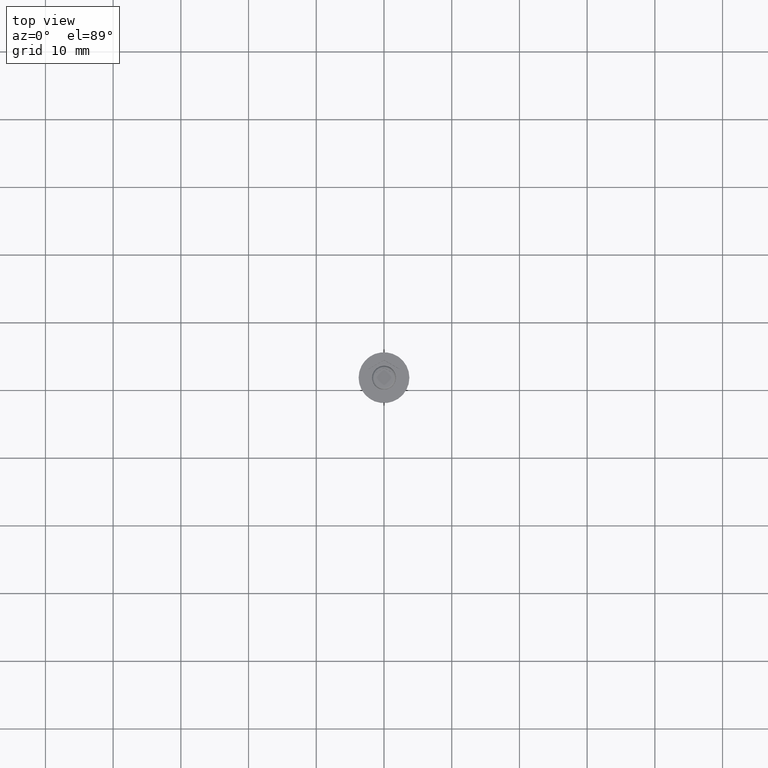
[diagram: clean part render]
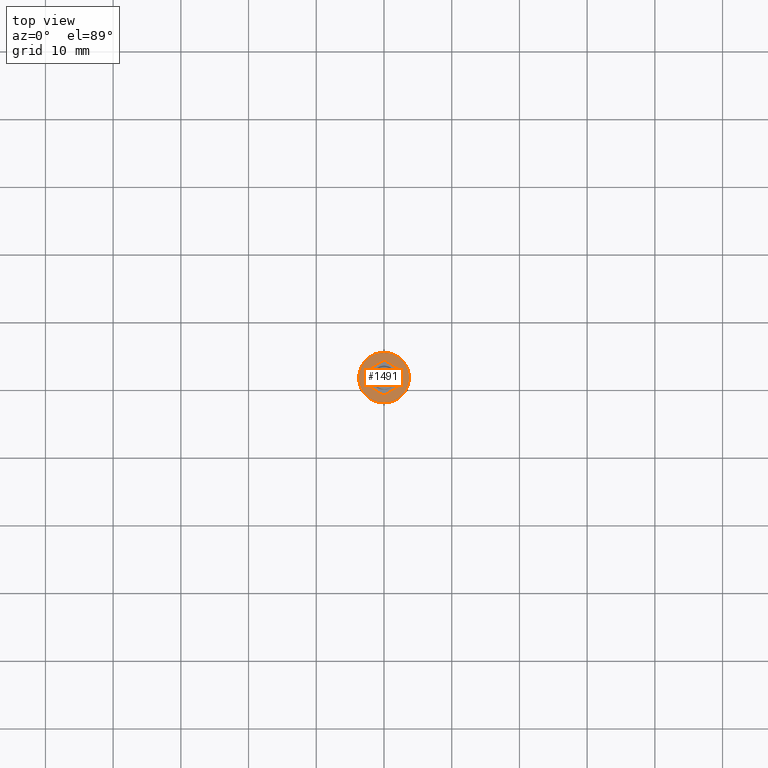
[diagram: same view with one face highlighted and labeled with its STEP entity id]
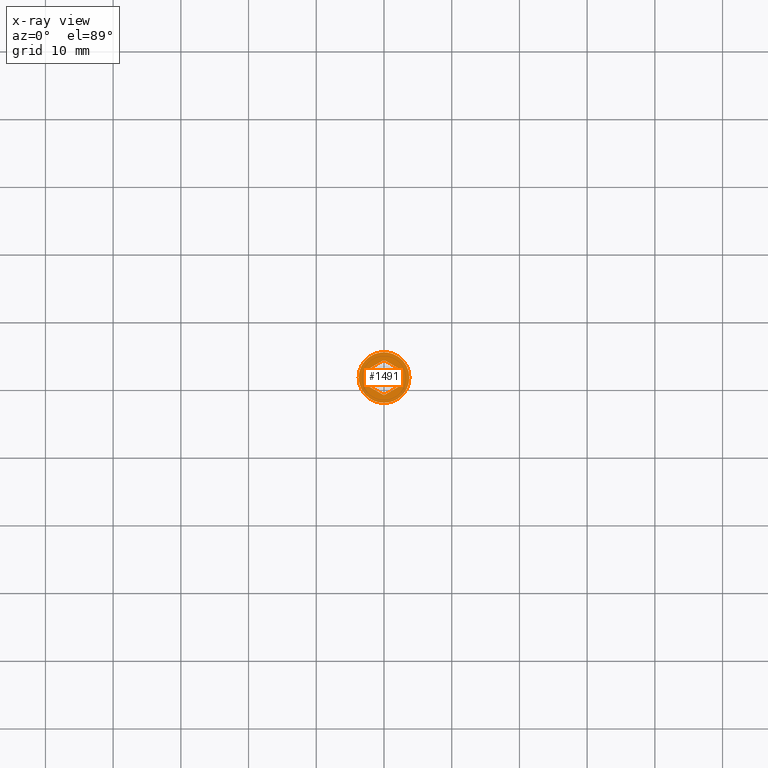
[diagram: x-ray of the same camera — body ghosted, the highlighted face saturated]
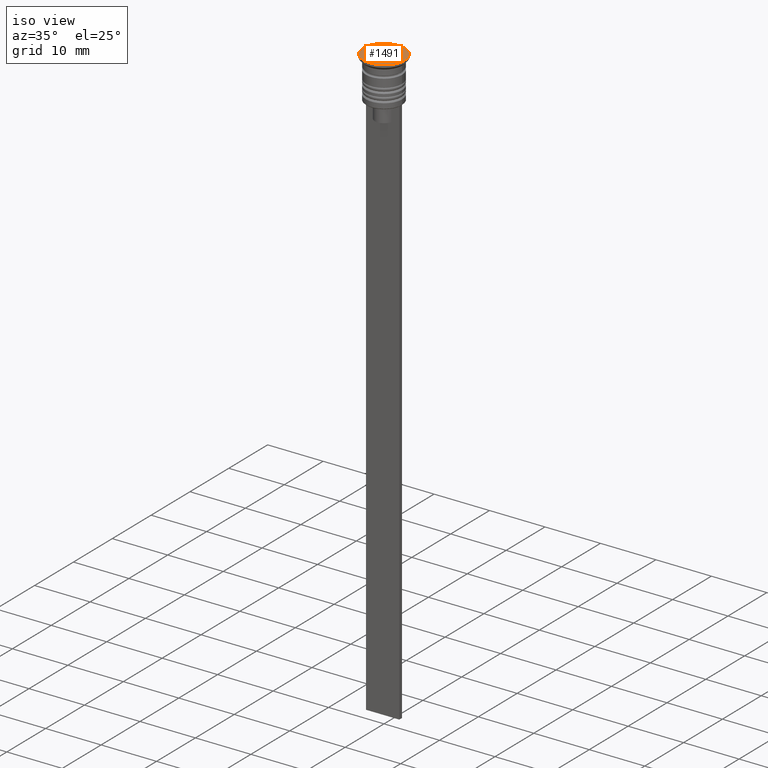
[diagram: same view with one face highlighted and labeled with its STEP entity id]
A machine part, top view. The second image highlights one B-rep face of the part: STEP entity #1491.
The next image is the same camera in x-ray: the body ghosted, the highlighted face saturated — about 0% of this face is hidden behind the body in this view.
A second angle (iso view) of the same face is appended — the face is thin or edge-on in the first view.
In plain terms, the highlighted planar face has unit normal (0, -0, 1).
Its self-contained STEP definition (entity closure, byte-faithful):
#54 = DIRECTION ( 'NONE',  ( 1.000000000000000000, 0.000000000000000000, 0.000000000000000000 ) ) ;
#68 = ORIENTED_EDGE ( 'NONE', *, *, #1567, .F. ) ;
#73 = VECTOR ( 'NONE', #501, 1000.000000000000000 ) ;
#74 = AXIS2_PLACEMENT_3D ( 'NONE', #668, #472, #309 ) ;
#233 = CARTESIAN_POINT ( 'NONE',  ( 2.224527942369933556E-16, -2.598076211353316456, 0.000000000000000000 ) ) ;
#253 = EDGE_LOOP ( 'NONE', ( #1910, #1860, #68, #394, #1458, #1301 ) ) ;
#298 = CARTESIAN_POINT ( 'NONE',  ( -2.250000000000000888, -1.299038105676658228, 0.000000000000000000 ) ) ;
#309 = DIRECTION ( 'NONE',  ( 1.000000000000000000, 0.000000000000000000, 0.000000000000000000 ) ) ;
#310 = ORIENTED_EDGE ( 'NONE', *, *, #1800, .T. ) ;
#385 = AXIS2_PLACEMENT_3D ( 'NONE', #1837, #500, #1670 ) ;
#394 = ORIENTED_EDGE ( 'NONE', *, *, #1081, .F. ) ;
#396 = CARTESIAN_POINT ( 'NONE',  ( 0.000000000000000000, 0.000000000000000000, 0.000000000000000000 ) ) ;
#456 = CIRCLE ( 'NONE', #74, 3.750000000000000000 ) ;
#472 = DIRECTION ( 'NONE',  ( -0.000000000000000000, -0.000000000000000000, 1.000000000000000000 ) ) ;
#500 = DIRECTION ( 'NONE',  ( 0.000000000000000000, -0.000000000000000000, 1.000000000000000000 ) ) ;
#501 = DIRECTION ( 'NONE',  ( -0.8660254037844387076, -0.4999999999999999445, 0.000000000000000000 ) ) ;
#514 = FACE_BOUND ( 'NONE', #253, .T. ) ;
#518 = VERTEX_POINT ( 'NONE', #740 ) ;
#590 = CARTESIAN_POINT ( 'NONE',  ( 2.250000000000000000, -1.299038105676658228, 0.000000000000000000 ) ) ;
#599 = CARTESIAN_POINT ( 'NONE',  ( 2.250000000000000444, 1.299038105676659116, 0.000000000000000000 ) ) ;
#651 = VERTEX_POINT ( 'NONE', #952 ) ;
#662 = VECTOR ( 'NONE', #1671, 1000.000000000000000 ) ;
#663 = LINE ( 'NONE', #2017, #73 ) ;
#668 = CARTESIAN_POINT ( 'NONE',  ( 0.000000000000000000, 0.000000000000000000, 0.000000000000000000 ) ) ;
#673 = EDGE_CURVE ( 'NONE', #2001, #1558, #1575, .T. ) ;
#700 = VERTEX_POINT ( 'NONE', #1707 ) ;
#740 = CARTESIAN_POINT ( 'NONE',  ( 0.000000000000000000, 2.598076211353316012, 0.000000000000000000 ) ) ;
#826 = PLANE ( 'NONE',  #385 ) ;
#846 = CARTESIAN_POINT ( 'NONE',  ( -2.250000000000000888, -1.299038105676658228, 0.000000000000000000 ) ) ;
#952 = CARTESIAN_POINT ( 'NONE',  ( 3.750000000000000000, 0.000000000000000000, 0.000000000000000000 ) ) ;
#995 = EDGE_CURVE ( 'NONE', #1746, #1267, #1649, .T. ) ;
#1003 = CIRCLE ( 'NONE', #1938, 3.750000000000000000 ) ;
#1081 = EDGE_CURVE ( 'NONE', #1558, #1495, #1449, .T. ) ;
#1104 = LINE ( 'NONE', #599, #1943 ) ;
#1144 = FACE_OUTER_BOUND ( 'NONE', #1423, .T. ) ;
#1148 = VECTOR ( 'NONE', #1532, 1000.000000000000000 ) ;
#1157 = CARTESIAN_POINT ( 'NONE',  ( 2.224527942369933556E-16, -2.598076211353316456, 0.000000000000000000 ) ) ;
#1245 = CARTESIAN_POINT ( 'NONE',  ( 2.250000000000000444, 1.299038105676659116, 0.000000000000000000 ) ) ;
#1248 = VECTOR ( 'NONE', #1564, 1000.000000000000000 ) ;
#1255 = EDGE_CURVE ( 'NONE', #518, #2001, #663, .T. ) ;
#1267 = VERTEX_POINT ( 'NONE', #1245 ) ;
#1278 = ORIENTED_EDGE ( 'NONE', *, *, #1503, .T. ) ;
#1301 = ORIENTED_EDGE ( 'NONE', *, *, #1255, .F. ) ;
#1360 = VECTOR ( 'NONE', #2163, 1000.000000000000000 ) ;
#1423 = EDGE_LOOP ( 'NONE', ( #310, #1278 ) ) ;
#1449 = LINE ( 'NONE', #298, #1360 ) ;
#1458 = ORIENTED_EDGE ( 'NONE', *, *, #673, .F. ) ;
#1491 = ADVANCED_FACE ( 'NONE', ( #514, #1144 ), #826, .T. ) ;
#1495 = VERTEX_POINT ( 'NONE', #1157 ) ;
#1503 = EDGE_CURVE ( 'NONE', #700, #651, #1003, .T. ) ;
#1532 = DIRECTION ( 'NONE',  ( 0.8660254037844385966, 0.5000000000000001110, 0.000000000000000000 ) ) ;
#1558 = VERTEX_POINT ( 'NONE', #846 ) ;
#1564 = DIRECTION ( 'NONE',  ( 0.000000000000000000, -1.000000000000000000, 0.000000000000000000 ) ) ;
#1567 = EDGE_CURVE ( 'NONE', #1495, #1746, #1706, .T. ) ;
#1575 = LINE ( 'NONE', #1716, #1248 ) ;
#1649 = LINE ( 'NONE', #2172, #662 ) ;
#1670 = DIRECTION ( 'NONE',  ( 1.000000000000000000, 0.000000000000000000, 0.000000000000000000 ) ) ;
#1671 = DIRECTION ( 'NONE',  ( 1.669238443041287429E-16, 1.000000000000000000, 0.000000000000000000 ) ) ;
#1706 = LINE ( 'NONE', #233, #1148 ) ;
#1707 = CARTESIAN_POINT ( 'NONE',  ( -3.750000000000000000, 4.592425496802573972E-16, 0.000000000000000000 ) ) ;
#1716 = CARTESIAN_POINT ( 'NONE',  ( -2.250000000000000888, 1.299038105676658228, 0.000000000000000000 ) ) ;
#1724 = CARTESIAN_POINT ( 'NONE',  ( -2.250000000000000888, 1.299038105676658228, 0.000000000000000000 ) ) ;
#1746 = VERTEX_POINT ( 'NONE', #590 ) ;
#1795 = DIRECTION ( 'NONE',  ( -0.8660254037844388186, 0.4999999999999997224, 0.000000000000000000 ) ) ;
#1800 = EDGE_CURVE ( 'NONE', #651, #700, #456, .T. ) ;
#1837 = CARTESIAN_POINT ( 'NONE',  ( 0.000000000000000000, 0.000000000000000000, 0.000000000000000000 ) ) ;
#1860 = ORIENTED_EDGE ( 'NONE', *, *, #995, .F. ) ;
#1910 = ORIENTED_EDGE ( 'NONE', *, *, #2153, .F. ) ;
#1938 = AXIS2_PLACEMENT_3D ( 'NONE', #396, #2086, #54 ) ;
#1943 = VECTOR ( 'NONE', #1795, 1000.000000000000000 ) ;
#2001 = VERTEX_POINT ( 'NONE', #1724 ) ;
#2017 = CARTESIAN_POINT ( 'NONE',  ( 0.000000000000000000, 2.598076211353316456, 0.000000000000000000 ) ) ;
#2086 = DIRECTION ( 'NONE',  ( -0.000000000000000000, -0.000000000000000000, 1.000000000000000000 ) ) ;
#2153 = EDGE_CURVE ( 'NONE', #1267, #518, #1104, .T. ) ;
#2163 = DIRECTION ( 'NONE',  ( 0.8660254037844387076, -0.4999999999999998335, 0.000000000000000000 ) ) ;
#2172 = CARTESIAN_POINT ( 'NONE',  ( 2.250000000000000000, -1.299038105676658228, 0.000000000000000000 ) ) ;